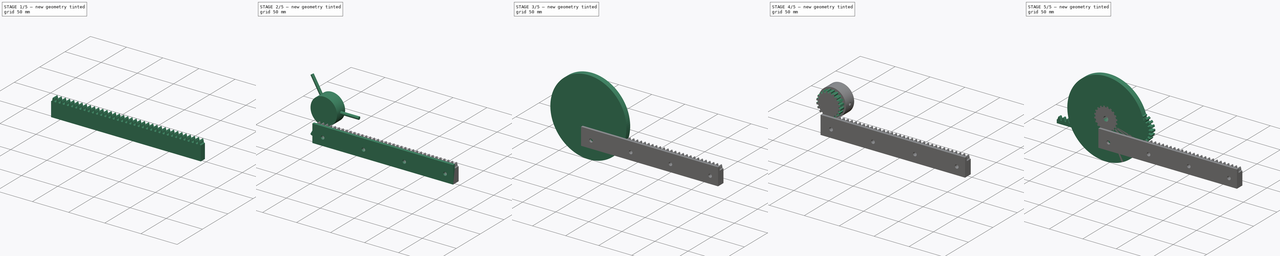
[diagram: build sequence overview — one tinted view per stage of 5, left to right]
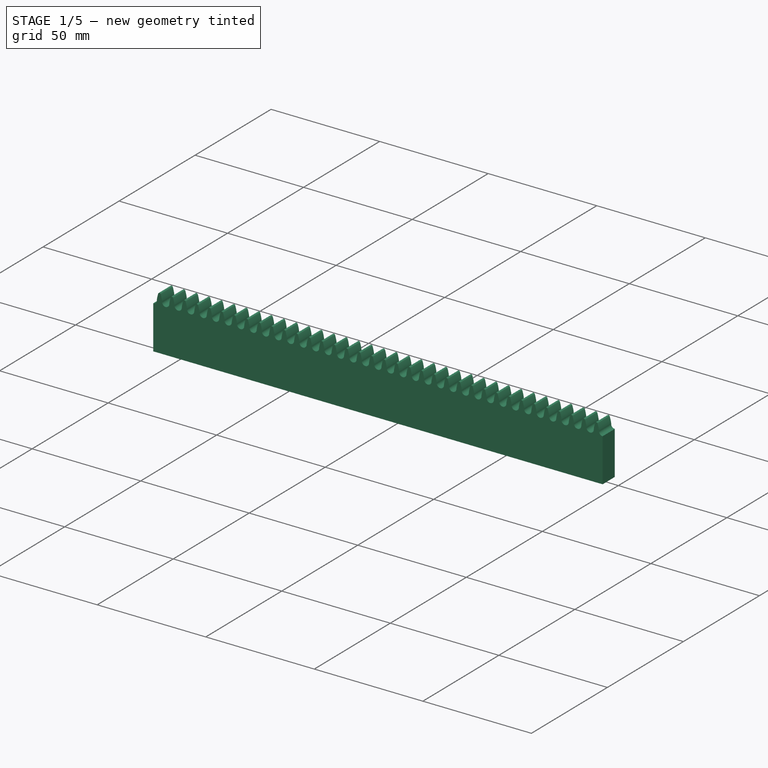
[diagram: stage 1 of 5 — iso view after this stage's code; geometry added in this stage tinted green]
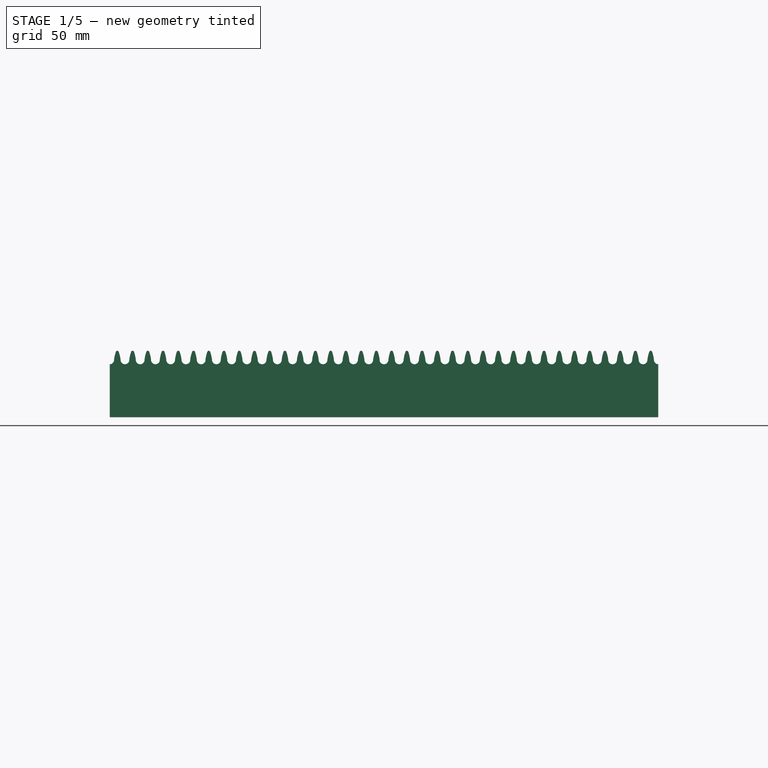
[diagram: stage 1 of 5 — front view after this stage's code; geometry added in this stage tinted green]
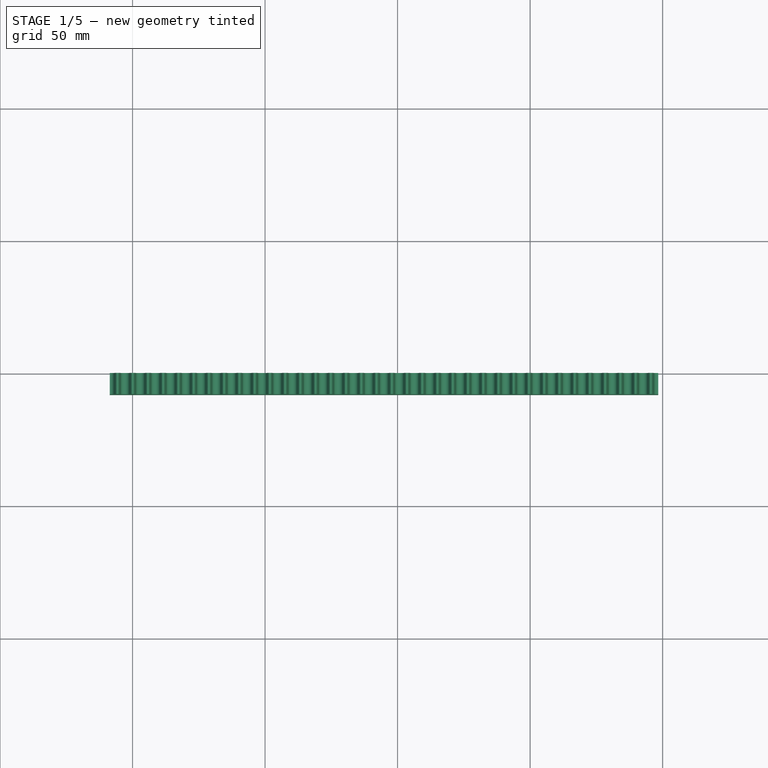
[diagram: stage 1 of 5 — top view after this stage's code; geometry added in this stage tinted green]
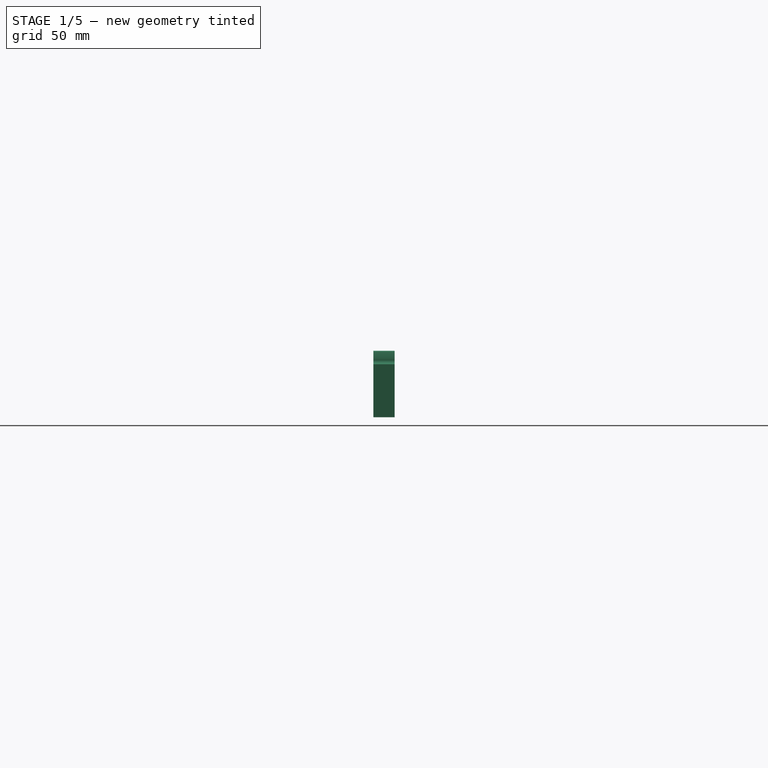
[diagram: stage 1 of 5 — right view after this stage's code; geometry added in this stage tinted green]
FCSTD DOCUMENT  (FreeCAD 0.20R29177 (Git))
Label: cnc-friendy-rack-and-pinion-for-humphrey2
License: All rights reserved
LicenseURL: http://en.wikipedia.org/wiki/All_rights_reserved
objects: Part::FeaturePython×50, Part::Mirroring×7, PartDesign::Body×6, Part::Cut×6, Part::Cylinder×6, Sketcher::SketchObject×5, PartDesign::FeatureBase×4, App::DocumentObjectGroup×3, Part::Offset×2, PartDesign::Pad×2, PartDesign::Fillet×2, Part::MultiFuse×2, Spreadsheet::Sheet×1, Part::Feature×1, Part::Box×1, PartDesign::ShapeBinder×1, Part::Loft×1, Part::MultiCommon×1, Part::Compound×1, Part::RuledSurface×1, +2 more types
note: 105 computed .brp shape members not serialized (recipe doc carries the construction recipe); baked Part::Feature solids carry a one-line shape summary decoded from their .brp

FEATURE [Spreadsheet::Sheet] Spreadsheet
  cells = A1=Main adjustements; A2=Number of pinion teeth; B2(pinion_tooth_count)=20; A3=Pinion tooth width; B3(pinion_tooth_width)=3.3; A4=Pinion tooth heigth; B4(pinion_tooth_heigth)=8; A5=Rack tooth spacing; B5(rack_tooth_spacing)=5.75; A6=Rack width; B6(rack_width)=20; A7=Rack thickness; B7(rack_thickness)=8; A8=Rack length; B8(rack_length)=205; A10=Advanced adjustments; A11=Motor shaft diameter; B11(pinion_motor_shaft_diameter)=7.2; A12=Motor shaft flat depth; B12(pinion_motor_shaft_flat_depth)=0.5; A13=Motor shaft flat corner dogbone diameter; B13(pinion_motor_shaft_flat_dogbone_diameter)=3.1; A14=Motorshaft hole dogbone angle; B14(pinion_dogbone_angle)=75; A15=Rack tooth fillet ratio; B15(rack_tooth_fillet_ratio)=0.1; A16=Pinion valley to rack tooth tip clearance; B16(pinion_side_clearance)=0.12; A17=Pinion to rack heigth clearance; B17(pinion_heigth_clearance)=0.5; A18=Pinion dust relief trim distance; B18(dust_relief)=0.5; A19=Pinion dust relief fillet ratio; B19(dust_relief_fillet_ratio)=0.1; A20=Pinion stock thickness; B20(pinion_stock_thick)=25; A21=Pinion ring diameter; B21(pinion_ring_diameter)=39; A22=Pinion set screw hole diameter; B22(pinion_set_screw_hole_diameter)=4.3; A23=Pinion set screw count; B23(pinion_set_screw_count)=3; A25=Inputs not to be changed:; A26=Master cycloid circumference; B26(master_cycloid_circumference)=100; A29=Deducted values (not to be changed):; A30=Pinion circumference; B30(pinion_circumference)==pinion_tooth_count * rack_tooth_spacing; A31=Pinion tooth gap size; B31(pinion_tooth_gap_size)==rack_tooth_spacing - pinion_tooth_width
FEATURE [Part::Feature] Part__Feature  label="Master-cycloid"
  shape: bbox 100 x 100 x 81.83 mm, 7 faces (baked)
FEATURE [Part::FeaturePython] Clone  label="Master-cycloid-scaled-and-moved"  # Draft clone (typed FeaturePython)
  AttacherType = Attacher::AttachEngine3D
  Fuse = false
  Objects = -> [Part__Feature]
  Placement = pos=(-2.875,0,0) rot=(0,0,1;0rad)
  Scale = (1.15,1.15,1.15)
  expr: .Placement.Base.x = Spreadsheet.rack_tooth_spacing / 2 * -1
  expr: .Scale.x = Spreadsheet.pinion_circumference / Spreadsheet.master_cycloid_circumference
  expr: .Scale.y = Spreadsheet.pinion_circumference / Spreadsheet.master_cycloid_circumference
  expr: .Scale.z = Spreadsheet.pinion_circumference / Spreadsheet.master_cycloid_circumference
FEATURE [Part::Offset] Offset
  Fill = false
  Intersection = false
  Join = 0
  Mode = 0
  SelfIntersection = false
  Source = -> Clone
  Value = 1.65
  expr: Value = Spreadsheet.pinion_tooth_width / 2
FEATURE [Part::Mirroring] Part__Mirroring  label="Offset (Mirror #1)"
  Base = (0,0,0)
  Normal = (1,0,0)
  Source = -> Offset
FEATURE [Sketcher::SketchObject] Sketch
  FullyConstrained = true
  MapMode = 5
  Placement = pos=(0,0,0) rot=(1,0,0;1.5708rad)
  Support = -> [XZ_Plane]
  expr: Constraints[10] = Spreadsheet.rack_tooth_spacing / -2
  expr: Constraints[11] = Spreadsheet.rack_width + Spreadsheet.pinion_tooth_width / 2
  expr: Constraints[8] = Spreadsheet.rack_tooth_spacing
  expr: Constraints[9] = Spreadsheet.rack_width + Spreadsheet.rack_tooth_spacing * 3
  sketch-geometry (4):
    g0: LineSegment StartX=-2.875 StartY=15.6 StartZ=0 EndX=2.875 EndY=15.6 EndZ=0
    g1: LineSegment StartX=2.875 StartY=15.6 StartZ=0 EndX=2.875 EndY=-21.65 EndZ=0
    g2: LineSegment StartX=2.875 StartY=-21.65 StartZ=0 EndX=-2.875 EndY=-21.65 EndZ=0
    g3: LineSegment StartX=-2.875 StartY=-21.65 StartZ=0 EndX=-2.875 EndY=15.6 EndZ=0
  constraints (12):
    c: Coincident(g0,g1)
    c: Coincident(g1,g2)
    c: Coincident(g2,g3)
    c: Coincident(g3,g0)
    c: Horizontal(g0)
    c: Horizontal(g2)
    c: Vertical(g1)
    c: Vertical(g3)
    c: DistanceX(g2,g2) = 5.75
    c: DistanceY(g1,g1) = 37.25
    c: DistanceX(g1,g-1) = -2.875
    c: DistanceY(g1,g-1) = 21.65
FEATURE [PartDesign::Pad] Pad
  AllowMultiFace = false
  Direction = (1,1,1)
  Length = 8
  Length2 = 100
  Placement = pos=(0,0,0) rot=(1,0,0;1.5708rad)
  Profile = -> Sketch
  Type = 0
  expr: Length = Spreadsheet.rack_thickness
FEATURE [PartDesign::Body] Body
  Group = -> [Sketch,Pad]
  Origin = -> Origin
  Tip = -> Pad
FEATURE [Part::Cut] Cut
  Base = -> Pad
  Tool = -> Offset
FEATURE [Part::Cut] Cut001
  Base = -> Cut
  Tool = -> Part__Mirroring
FEATURE [PartDesign::FeatureBase] BaseFeature
  BaseFeature = -> Cut001
FEATURE [PartDesign::Fillet] Fillet
  Base = -> BaseFeature [Edge21]
  BaseFeature = -> BaseFeature
  Radius = 0.575
  SupportTransform = false
  UseAllEdges = false
  expr: Radius = Spreadsheet.rack_tooth_spacing * Spreadsheet.rack_tooth_fillet_ratio
FEATURE [PartDesign::Body] Body001
  BaseFeature = -> Cut001
  Group = -> [BaseFeature,Fillet]
  Origin = -> Origin001
  Placement = pos=(0,0,-6.3662) rot=(0,0,1;0rad)
  Tip = -> Fillet
  expr: .Placement.Base.x = 0
FEATURE [Part::FeaturePython] Array  label="Rack"  # Draft array (typed FeaturePython)
  Angle = 360
  ArrayType = 0
  Axis = (0,0,1)
  Base = -> Fillet
  Center = (0,0,0)
  Fuse = true
  IntervalAxis = (0,0,0)
  IntervalX = (5.75,0,0)
  IntervalY = (0,1,0)
  IntervalZ = (0,0,1)
  NumberPolar = 1
  NumberX = 36
  NumberY = 1
  NumberZ = 1
  Placement = pos=(-5.75,0,-18.3028) rot=(0,0,1;0rad)
  expr: .IntervalX.x = Spreadsheet.rack_tooth_spacing
  expr: .Placement.Base.x = Spreadsheet.rack_tooth_spacing * -1
  expr: .Placement.Base.z = Spreadsheet.pinion_circumference / pi / -2
  expr: NumberX = Spreadsheet.rack_length / Spreadsheet.rack_tooth_spacing
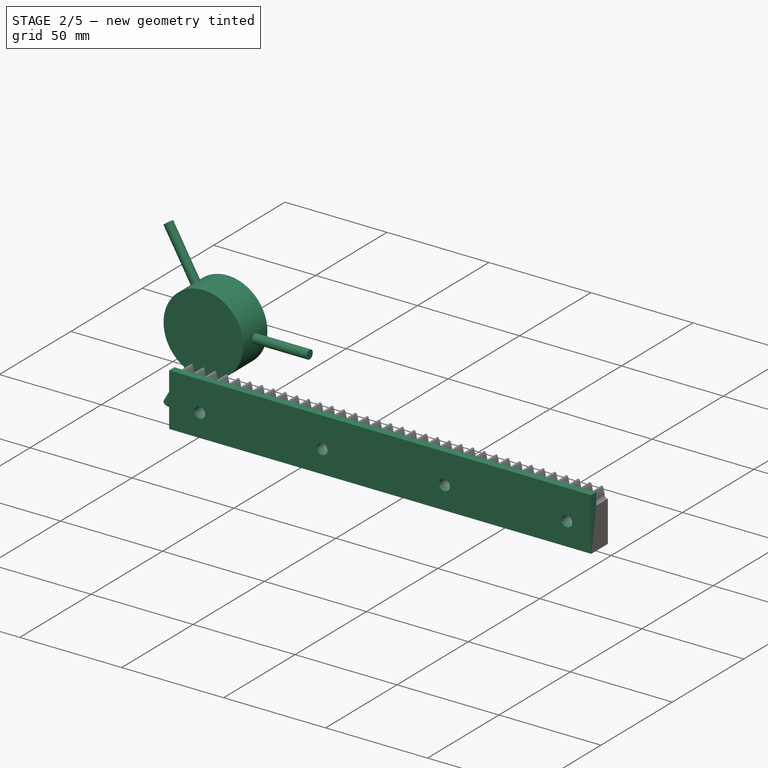
[diagram: stage 2 of 5 — iso view after this stage's code; geometry added in this stage tinted green]
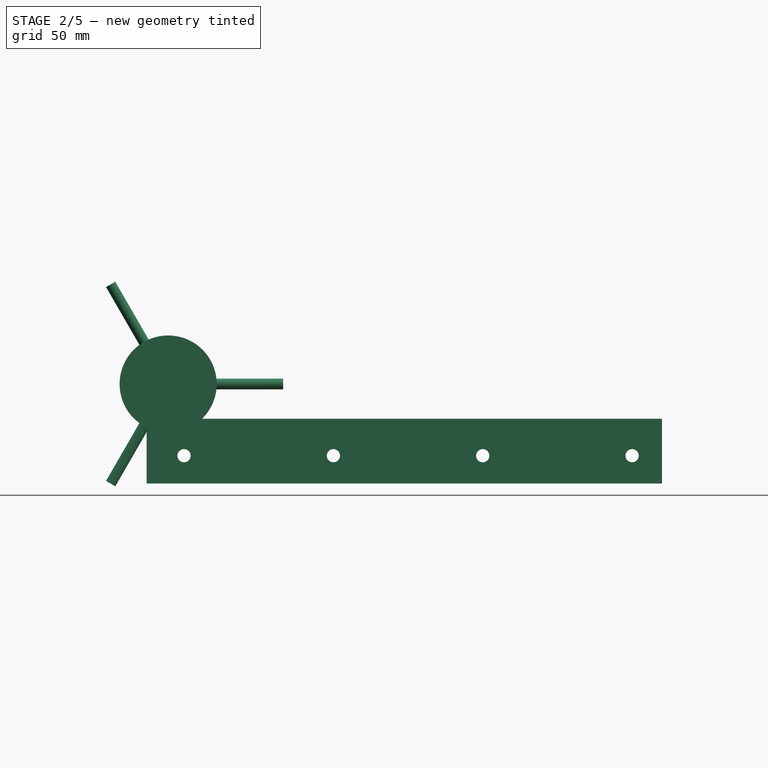
[diagram: stage 2 of 5 — front view after this stage's code; geometry added in this stage tinted green]
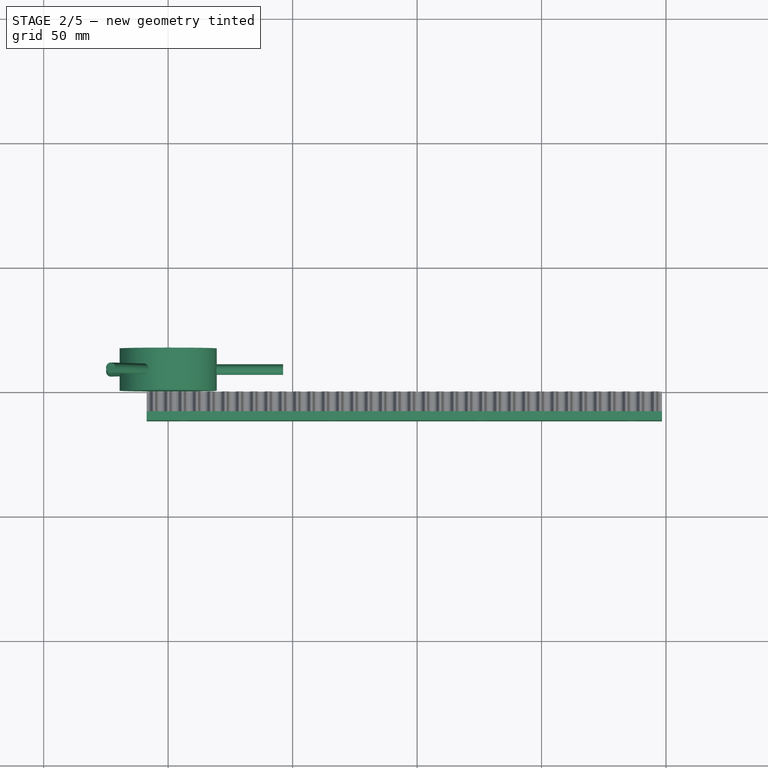
[diagram: stage 2 of 5 — top view after this stage's code; geometry added in this stage tinted green]
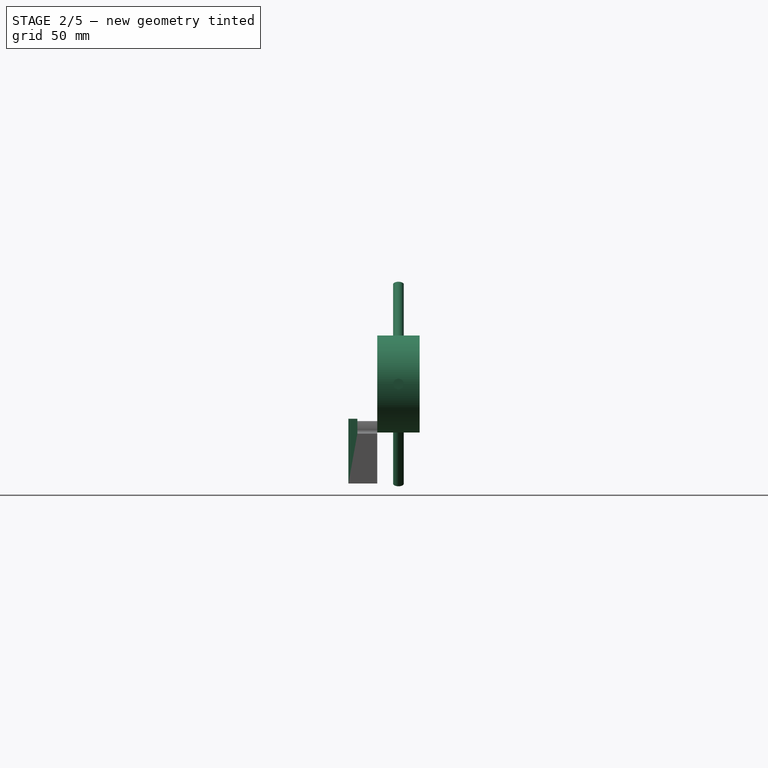
[diagram: stage 2 of 5 — right view after this stage's code; geometry added in this stage tinted green]
FEATURE [Part::Cylinder] Cylinder004  label="Cylinder"
  Angle = 360
  AttacherType = Attacher::AttachEngine3D
  FirstAngle = 0
  Height = 17
  Placement = pos=(0,0,0) rot=(-1,0,0;1.5708rad)
  Radius = 19.5
  SecondAngle = 0
  expr: Height = Spreadsheet.pinion_stock_thick - Spreadsheet.pinion_tooth_heigth
  expr: Radius = Spreadsheet.pinion_ring_diameter / 2
FEATURE [Part::Cylinder] Cylinder005  label="Cylinder001"
  Angle = 360
  AttacherType = Attacher::AttachEngine3D
  FirstAngle = 0
  Height = 46.2
  Placement = pos=(0,8.5,0) rot=(0,1,0;1.5708rad)
  Radius = 2.15
  SecondAngle = 0
  expr: .Placement.Base.y = (Spreadsheet.pinion_stock_thick - Spreadsheet.pinion_tooth_heigth) / 2
  expr: Height = Spreadsheet.pinion_motor_shaft_diameter + Spreadsheet.pinion_ring_diameter
  expr: Radius = Spreadsheet.pinion_set_screw_hole_diameter / 2
FEATURE [Part::FeaturePython] Array016  # Draft array (typed FeaturePython)
  Angle = 360
  ArrayType = 1
  Axis = (0,1,0)
  Base = -> Cylinder005
  Center = (0,0,0)
  Fuse = false
  IntervalAxis = (0,0,0)
  IntervalX = (1,0,0)
  IntervalY = (0,1,0)
  IntervalZ = (0,0,1)
  NumberPolar = 3
  NumberX = 1
  NumberY = 1
  NumberZ = 1
  expr: NumberPolar = Spreadsheet.pinion_set_screw_count
FEATURE [PartDesign::FeatureBase] BaseFeature004
  BaseFeature = -> Array
FEATURE [Sketcher::SketchObject] Sketch004
  AttachmentOffset = pos=(0,0,8) rot=(0,0,1;0rad)
  ExternalGeometry = -> [BaseFeature004]
  FullyConstrained = true
  MapMode = 5
  Placement = pos=(0,-8,-1.8e-15) rot=(1,0,0;1.5708rad)
  Support = -> [XZ_Plane008]
  expr: .AttachmentOffset.Base.z = Spreadsheet.pinion_tooth_heigth
  sketch-geometry (4):
    g0: LineSegment StartX=-2.875 StartY=-21.65 StartZ=0 EndX=204.125 EndY=-21.65 EndZ=0
    g1: LineSegment StartX=204.125 StartY=-21.65 StartZ=0 EndX=204.125 EndY=4.35 EndZ=0
    g2: LineSegment StartX=204.125 StartY=4.35 StartZ=0 EndX=-2.875 EndY=4.35 EndZ=0
    g3: LineSegment StartX=-2.875 StartY=4.35 StartZ=0 EndX=-2.875 EndY=-21.65 EndZ=0
  constraints (10):
    c: Coincident(g0,g1)
    c: Coincident(g1,g2)
    c: Coincident(g2,g3)
    c: Coincident(g3,g0)
    c: Horizontal(g2)
    c: Vertical(g1)
    c: Vertical(g3)
    c: Distance(g1) = 26
    c: Coincident(g0,g-5)
    c: Coincident(g-4,g0)
FEATURE [PartDesign::Pad] Pad001
  BaseFeature = -> BaseFeature004
  Direction = (1,1,1)
  Length = 3.6
  Length2 = 100
  Profile = -> Sketch004
  Refine = true
  Type = 0
  expr: Length = 11.6 - Spreadsheet.pinion_tooth_heigth
FEATURE [Sketcher::SketchObject] Sketch005
  FullyConstrained = false
  MapMode = 5
  Placement = pos=(0,0,0) rot=(1,0,0;1.5708rad)
  Support = -> [XZ_Plane008]
  expr: Constraints[1] = 15 - Spreadsheet.rack_tooth_spacing / 2
  sketch-geometry (1):
    g0: Circle CenterX=12.125 CenterY=-10.5 CenterZ=0 NormalX=0 NormalY=0 NormalZ=1 AngleXU=0 Radius=4.11992
  constraints (2):
    c: DistanceY(g-1,g0) = -10.5
    c: DistanceX(g-2,g0) = 12.125
FEATURE [PartDesign::Hole] Hole
  BaseFeature = -> Pad001
  CustomThreadClearance = 0
  Depth = 25
  DepthType = 1
  Diameter = 5.3
  DrillForDepth = false
  DrillPoint = 1
  DrillPointAngle = 118
  HoleCutCountersinkAngle = 90
  HoleCutCustomValues = false
  HoleCutDepth = 5.5
  HoleCutDiameter = 9.7
  HoleCutType = 1
  ModelThread = false
  Profile = -> Sketch005
  Reversed = true
  Tapered = false
  TaperedAngle = 90
  ThreadClass = 0
  ThreadDepth = 23.5
  ThreadDepthType = 0
  ThreadDirection = 0
  ThreadFit = 0
  ThreadSize = 0
  ThreadType = 0
  Threaded = false
  UseCustomThreadClearance = false
FEATURE [PartDesign::LinearPattern] LinearPattern
  BaseFeature = -> Hole
  Direction = -> Sketch005 [H_Axis]
  Length = 180
  Occurrences = 4
  Originals = -> [Hole]
  expr: Length = (Occurrences - 1) * 60
FEATURE [PartDesign::Body] Body008  label="Rack with web and material thickness"
  BaseFeature = -> Array
  Group = -> [BaseFeature004,Sketch004,Pad001,Sketch005,Hole,LinearPattern]
  Origin = -> Origin008
  Placement = pos=(-5.75,0,-18.3028) rot=(0,0,1;0rad)
  Tip = -> LinearPattern
  expr: .Placement.Base.x = Spreadsheet.rack_tooth_spacing * -1
  expr: .Placement.Base.z = Spreadsheet.pinion_circumference / pi / -2
FEATURE [Part::FeaturePython] Array017  label="Rack - position fixed"  # Draft array (typed FeaturePython)
  AlwaysSyncPlacement = false
  Angle = 360
  ArrayType = 0
  Axis = (0,0,1)
  Base = -> Body008
  Center = (0,0,0)
  Count = 1
  ExpandArray = false
  Fuse = false
  IntervalAxis = (0,0,0)
  IntervalX = (100,0,0)
  IntervalY = (0,100,0)
  IntervalZ = (0,0,100)
  NumberCircles = 3
  NumberPolar = 5
  NumberX = 1
  NumberY = 1
  NumberZ = 1
  PlacementList = 1 placements: [(-5.75,0,-18.3028)]
  RadialDistance = 50
  ScaleList = (1) [(1,1,1)]
  Symmetry = 1
  TangentialDistance = 25
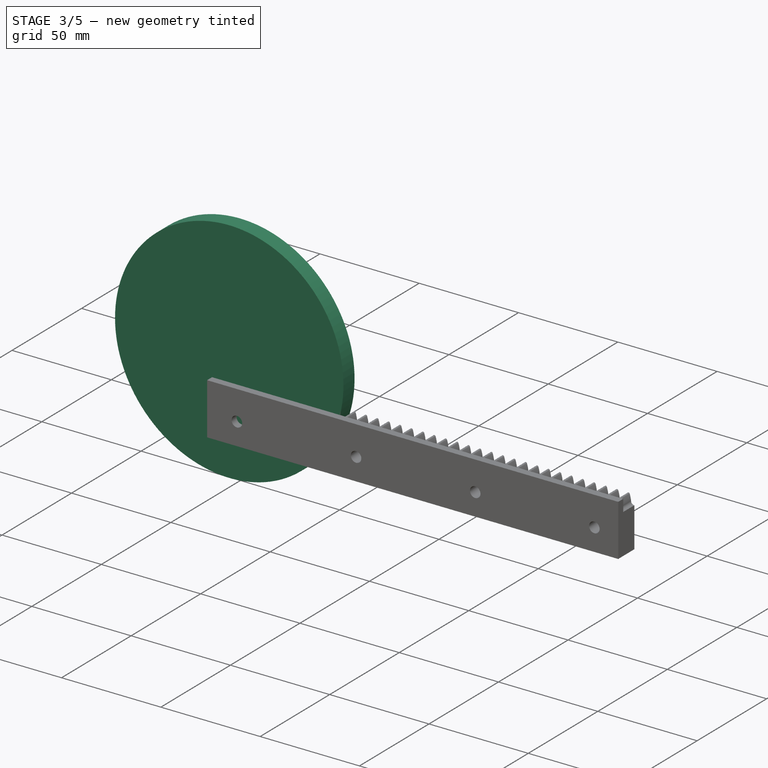
[diagram: stage 3 of 5 — iso view after this stage's code; geometry added in this stage tinted green]
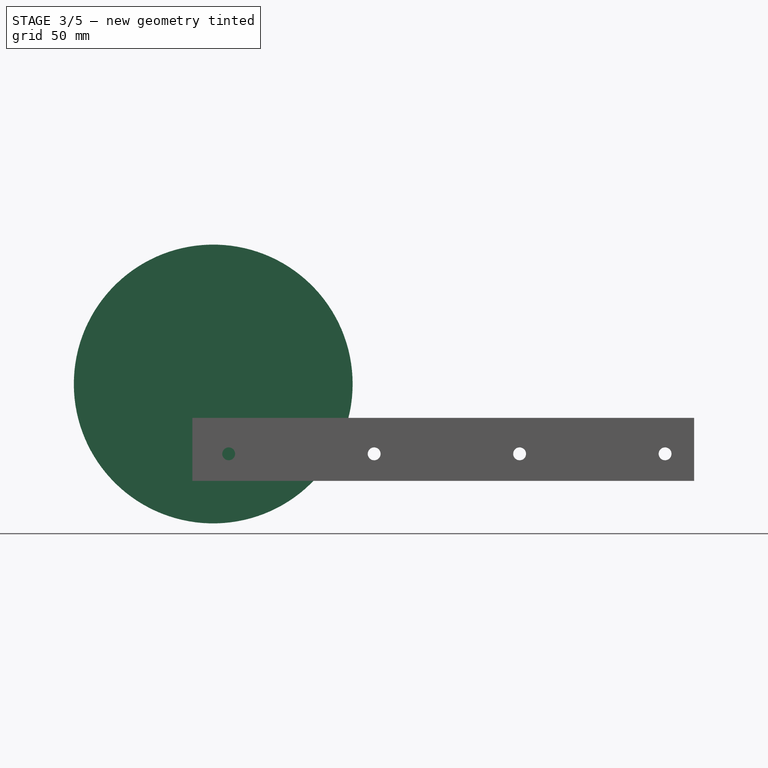
[diagram: stage 3 of 5 — front view after this stage's code; geometry added in this stage tinted green]
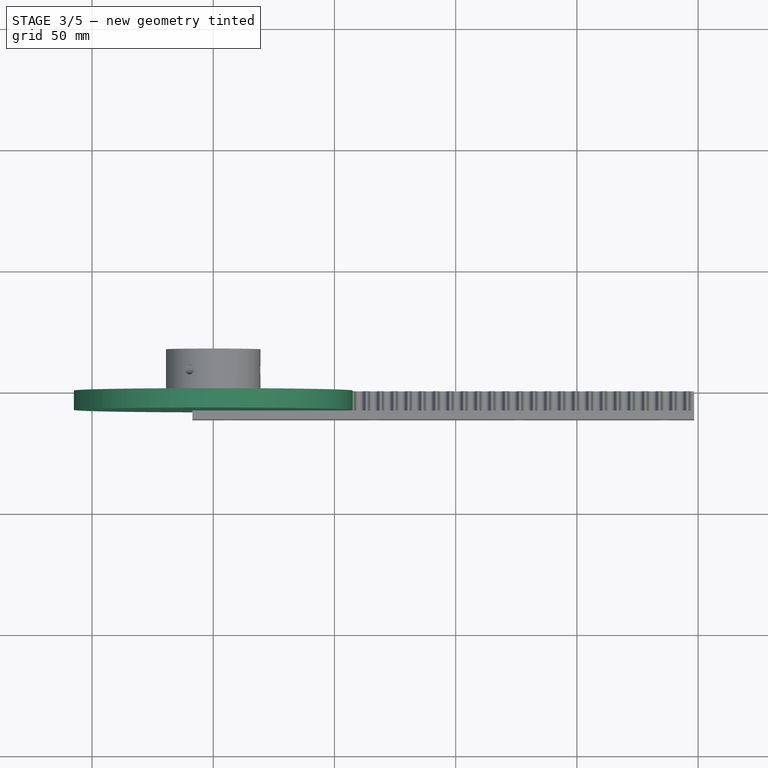
[diagram: stage 3 of 5 — top view after this stage's code; geometry added in this stage tinted green]
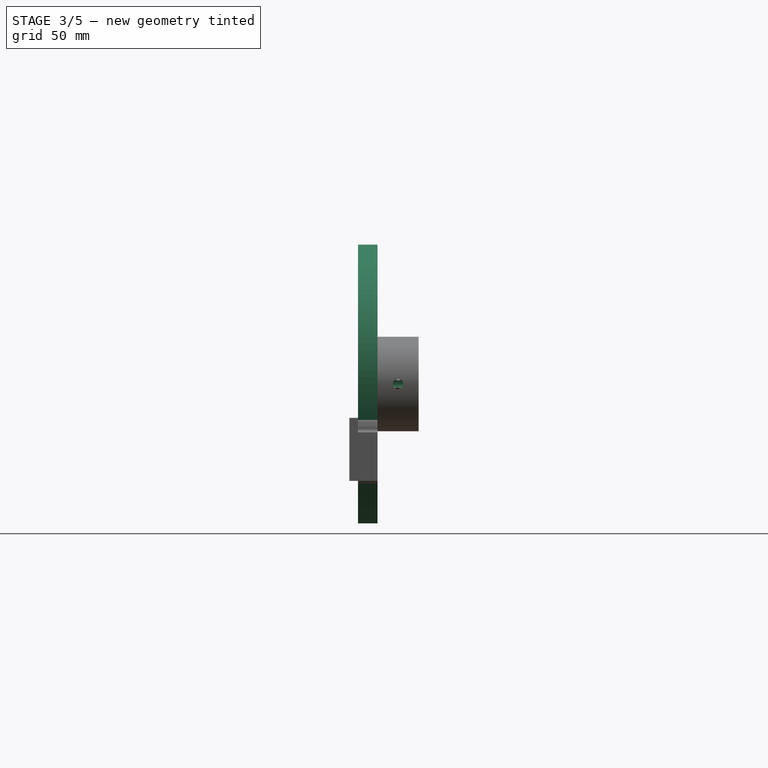
[diagram: stage 3 of 5 — right view after this stage's code; geometry added in this stage tinted green]
FEATURE [PartDesign::ShapeBinder] ShapeBinder
  Placement = pos=(0,0,-18.3028) rot=(0,0,1;0rad)
  Support = -> [Cut002]
  TraceSupport = false
FEATURE [Sketcher::SketchObject] Sketch001
  ExternalGeometry = -> [ShapeBinder]
  FullyConstrained = true
  MapMode = 5
  Placement = pos=(0,0,0) rot=(0.57735,0.57735,0.57735;2.0944rad)
  Support = -> [YZ_Plane005]
  expr: Constraints[3] = Spreadsheet.rack_tooth_spacing * Spreadsheet.rack_tooth_fillet_ratio
  sketch-geometry (1):
    g0: LineSegment StartX=-8 StartY=-15.4427 StartZ=0 EndX=3.6e-15 EndY=-15.4427 EndZ=0
  constraints (4):
    c: Horizontal(g0)
    c: DistanceX(g0,g-3) = 0
    c: DistanceX(g0,g-3) = 0
    c: DistanceY(g0,g-3) = 0.575
FEATURE [PartDesign::Body] Body005  label="Body for extrating tooth tip center line"
  Group = -> [Sketch001,ShapeBinder]
  Origin = -> Origin005
FEATURE [Part::FeaturePython] Array001  label="Center line"  # Draft array (typed FeaturePython)
  Angle = 360
  ArrayType = 0
  Axis = (0,0,1)
  Base = -> Sketch001
  Center = (0,0,0)
  Fuse = false
  IntervalAxis = (0,0,0)
  IntervalX = (1,0,0)
  IntervalY = (0,1,0)
  IntervalZ = (0,0,1)
  NumberPolar = 1
  NumberX = 1
  NumberY = 1
  NumberZ = 1
FEATURE [Part::FeaturePython] Array002  label="Rigth1-move"  # Draft array (typed FeaturePython)
  Angle = 360
  ArrayType = 0
  Axis = (0,0,1)
  Base = -> Sketch001
  Center = (0,0,0)
  Fuse = false
  IntervalAxis = (0,0,0)
  IntervalX = (1,0,0)
  IntervalY = (0,1,0)
  IntervalZ = (0,0,1)
  NumberPolar = 1
  NumberX = 1
  NumberY = 1
  NumberZ = 1
  Placement = pos=(2.55556,0,0) rot=(0,0,1;0rad)
  expr: .Placement.Base.x = Spreadsheet.pinion_circumference / (360 / 8)
FEATURE [Part::FeaturePython] Array003  label="Rigth1-rotate"  # Draft array (typed FeaturePython)
  Angle = 0
  ArrayType = 0
  Axis = (0,0,1)
  Base = -> Array002
  Center = (0,0,0)
  Fuse = false
  IntervalAxis = (0,0,0)
  IntervalX = (1,0,0)
  IntervalY = (0,1,0)
  IntervalZ = (0,0,1)
  NumberPolar = 1
  NumberX = 1
  NumberY = 1
  NumberZ = 1
  Placement = pos=(0,0,0) rot=(0,1,0;0.139626rad)
  expr: .Placement.Base.x = 0
FEATURE [Part::FeaturePython] Array004  label="Right2-move"  # Draft array (typed FeaturePython)
  Angle = 360
  ArrayType = 0
  Axis = (0,0,1)
  Base = -> Sketch001
  Center = (0,0,0)
  Fuse = false
  IntervalAxis = (0,0,0)
  IntervalX = (1,0,0)
  IntervalY = (0,1,0)
  IntervalZ = (0,0,1)
  NumberPolar = 1
  NumberX = 1
  NumberY = 1
  NumberZ = 1
  Placement = pos=(5.11111,0,0) rot=(0,0,1;0rad)
  expr: .Placement.Base.x = Spreadsheet.pinion_circumference / (360 / 16)
FEATURE [Part::FeaturePython] Array005  label="Right2-rotate"  # Draft array (typed FeaturePython)
  Angle = 0
  ArrayType = 0
  Axis = (0,0,1)
  Base = -> Array004
  Center = (0,0,0)
  Fuse = false
  IntervalAxis = (0,0,0)
  IntervalX = (1,0,0)
  IntervalY = (0,1,0)
  IntervalZ = (0,0,1)
  NumberPolar = 1
  NumberX = 1
  NumberY = 1
  NumberZ = 1
  Placement = pos=(0,0,0) rot=(0,1,0;0.279253rad)
FEATURE [Part::FeaturePython] Array006  label="Right3-move"  # Draft array (typed FeaturePython)
  Angle = 360
  ArrayType = 0
  Axis = (0,0,1)
  Base = -> Sketch001
  Center = (0,0,0)
  Fuse = false
  IntervalAxis = (0,0,0)
  IntervalX = (1,0,0)
  IntervalY = (0,1,0)
  IntervalZ = (0,0,1)
  NumberPolar = 1
  NumberX = 1
  NumberY = 1
  NumberZ = 1
  Placement = pos=(7.66667,0,0) rot=(0,0,1;0rad)
  expr: .Placement.Base.x = Spreadsheet.pinion_circumference / (360 / 24)
FEATURE [Part::FeaturePython] Array007  label="Right3-rotate"  # Draft array (typed FeaturePython)
  Angle = 360
  ArrayType = 0
  Axis = (0,0,1)
  Base = -> Array006
  Center = (0,0,0)
  Fuse = false
  IntervalAxis = (0,0,0)
  IntervalX = (1,0,0)
  IntervalY = (0,1,0)
  IntervalZ = (0,0,1)
  NumberPolar = 1
  NumberX = 1
  NumberY = 1
  NumberZ = 1
  Placement = pos=(0,0,0) rot=(0,1,0;0.418879rad)
FEATURE [Part::FeaturePython] Array008  label="Right4-move "  # Draft array (typed FeaturePython)
  Angle = 360
  ArrayType = 0
  Axis = (0,0,1)
  Base = -> Sketch001
  Center = (0,0,0)
  Fuse = false
  IntervalAxis = (0,0,0)
  IntervalX = (1,0,0)
  IntervalY = (0,1,0)
  IntervalZ = (0,0,1)
  NumberPolar = 1
  NumberX = 1
  NumberY = 1
  NumberZ = 1
  Placement = pos=(10.2222,0,0) rot=(0,0,1;0rad)
  expr: .Placement.Base.x = Spreadsheet.pinion_circumference / (360 / 32)
FEATURE [Part::FeaturePython] Array009  label="Right4-rotate"  # Draft array (typed FeaturePython)
  Angle = 360
  ArrayType = 0
  Axis = (0,0,1)
  Base = -> Array008
  Center = (0,0,0)
  Fuse = false
  IntervalAxis = (0,0,0)
  IntervalX = (1,0,0)
  IntervalY = (0,1,0)
  IntervalZ = (0,0,1)
  NumberPolar = 1
  NumberX = 1
  NumberY = 1
  NumberZ = 1
  Placement = pos=(0,0,0) rot=(0,1,0;0.558505rad)
FEATURE [Part::FeaturePython] Array010  label="Right5-move"  # Draft array (typed FeaturePython)
  Angle = 360
  ArrayType = 0
  Axis = (0,0,1)
  Base = -> Sketch001
  Center = (0,0,0)
  Fuse = false
  IntervalAxis = (0,0,0)
  IntervalX = (1,0,0)
  IntervalY = (0,1,0)
  IntervalZ = (0,0,1)
  NumberPolar = 1
  NumberX = 1
  NumberY = 1
  NumberZ = 1
  Placement = pos=(12.7778,0,0) rot=(0,0,1;0rad)
  expr: .Placement.Base.x = Spreadsheet.pinion_circumference / (360 / 40)
FEATURE [Part::FeaturePython] Array011  label="Right5-rotate"  # Draft array (typed FeaturePython)
  Angle = 360
  ArrayType = 0
  Axis = (0,0,1)
  Base = -> Array010
  Center = (0,0,0)
  Fuse = false
  IntervalAxis = (0,0,0)
  IntervalX = (1,0,0)
  IntervalY = (0,1,0)
  IntervalZ = (0,0,1)
  NumberPolar = 1
  NumberX = 1
  NumberY = 1
  NumberZ = 1
  Placement = pos=(0,0,0) rot=(0,1,0;0.698132rad)
FEATURE [Part::FeaturePython] Array012  label="Right6-move"  # Draft array (typed FeaturePython)
  Angle = 360
  ArrayType = 0
  Axis = (0,0,1)
  Base = -> Sketch001
  Center = (0,0,0)
  Fuse = false
  IntervalAxis = (0,0,0)
  IntervalX = (1,0,0)
  IntervalY = (0,1,0)
  IntervalZ = (0,0,1)
  NumberPolar = 1
  NumberX = 1
  NumberY = 1
  NumberZ = 1
  Placement = pos=(15.3333,0,0) rot=(0,1,0;0rad)
  expr: .Placement.Base.x = Spreadsheet.pinion_circumference / (360 / 48)
FEATURE [Part::FeaturePython] Array013  label="Right6-rotate"  # Draft array (typed FeaturePython)
  Angle = 360
  ArrayType = 0
  Axis = (0,0,1)
  Base = -> Array012
  Center = (0,0,0)
  Fuse = false
  IntervalAxis = (0,0,0)
  IntervalX = (1,0,0)
  IntervalY = (0,1,0)
  IntervalZ = (0,0,1)
  NumberPolar = 1
  NumberX = 1
  NumberY = 1
  NumberZ = 1
  Placement = pos=(0,0,0) rot=(0,1,0;0.837758rad)
FEATURE [Part::Mirroring] Part__Mirroring001  label="Rigth1-rotate (Mirror #2)"
  Base = (0,0,0)
  Normal = (1,0,0)
  Source = -> Array003
FEATURE [Part::Mirroring] Part__Mirroring002  label="Right2-rotate (Mirror #3)"
  Base = (0,0,0)
  Normal = (1,0,0)
  Source = -> Array005
FEATURE [Part::Mirroring] Part__Mirroring003  label="Right3-rotate (Mirror #4)"
  Base = (0,0,0)
  Normal = (1,0,0)
  Source = -> Array007
FEATURE [Part::Mirroring] Part__Mirroring004  label="Right4-rotate (Mirror #5)"
  Base = (0,0,0)
  Normal = (1,0,0)
  Source = -> Array009
FEATURE [Part::Mirroring] Part__Mirroring005  label="Right5-rotate (Mirror #6)"
  Base = (0,0,0)
  Normal = (1,0,0)
  Source = -> Array011
FEATURE [Part::Mirroring] Part__Mirroring006  label="Right6-rotate (Mirror #7)"
  Base = (0,0,0)
  Normal = (1,0,0)
  Source = -> Array013
FEATURE [Part::FeaturePython] Connect  # WARN: FeaturePython — macro-defined, semantics opaque (R4)
  Objects = -> [Array003]
  Tolerance = 0
FEATURE [Part::FeaturePython] Connect001  # WARN: FeaturePython — macro-defined, semantics opaque (R4)
  Objects = -> [Array005]
  Tolerance = 0
FEATURE [Part::FeaturePython] Connect002  # WARN: FeaturePython — macro-defined, semantics opaque (R4)
  Objects = -> [Array007]
  Tolerance = 0
FEATURE [Part::FeaturePython] Connect003  # WARN: FeaturePython — macro-defined, semantics opaque (R4)
  Objects = -> [Array009]
  Tolerance = 0
FEATURE [Part::FeaturePython] Connect004  # WARN: FeaturePython — macro-defined, semantics opaque (R4)
  Objects = -> [Array011]
  Tolerance = 0
FEATURE [Part::FeaturePython] Connect005  # WARN: FeaturePython — macro-defined, semantics opaque (R4)
  Objects = -> [Array013]
  Tolerance = 0
FEATURE [Part::FeaturePython] Connect006  # WARN: FeaturePython — macro-defined, semantics opaque (R4)
  Objects = -> [Part__Mirroring001]
  Tolerance = 0
FEATURE [Part::FeaturePython] Connect007  # WARN: FeaturePython — macro-defined, semantics opaque (R4)
  Objects = -> [Part__Mirroring002]
  Tolerance = 0
FEATURE [Part::FeaturePython] Connect008  # WARN: FeaturePython — macro-defined, semantics opaque (R4)
  Objects = -> [Part__Mirroring003]
  Tolerance = 0
FEATURE [Part::FeaturePython] Connect009  # WARN: FeaturePython — macro-defined, semantics opaque (R4)
  Objects = -> [Part__Mirroring004]
  Tolerance = 0
FEATURE [Part::FeaturePython] Connect010  # WARN: FeaturePython — macro-defined, semantics opaque (R4)
  Objects = -> [Part__Mirroring005]
  Tolerance = 0
FEATURE [Part::FeaturePython] Connect011  # WARN: FeaturePython — macro-defined, semantics opaque (R4)
  Objects = -> [Part__Mirroring006]
  Tolerance = 0
FEATURE [Part::Loft] Loft
  Closed = false
  MaxDegree = 2
  Ruled = false
  Sections = -> [Connect011,Connect010,Connect009,Connect008,Connect007,Connect006,Array001,Connect,Connect001,Connect002,Connect003,Connect004,Connect005]
  Solid = false
FEATURE [Part::Offset] Offset001  label="Inner pinion profile before trim"
  Fill = false
  Intersection = false
  Join = 0
  Mode = 0
  SelfIntersection = false
  Source = -> Loft
  Value = -0.695
  expr: Value = (Spreadsheet.rack_tooth_spacing * Spreadsheet.rack_tooth_fillet_ratio + Spreadsheet.pinion_side_clearance) * -1
FEATURE [Part::Cylinder] Cylinder  label="ToothCylinder"
  Angle = 360
  AttacherType = Attacher::AttachEngine3D
  FirstAngle = 0
  Height = 8
  Placement = pos=(0,0,-18.3028) rot=(1,0,0;1.5708rad)
  Radius = 1.65
  SecondAngle = 0
  expr: .Placement.Base.x = 0
  expr: .Placement.Base.z = Spreadsheet.pinion_circumference / pi / -2
  expr: Height = Spreadsheet.pinion_tooth_heigth
  expr: Radius = Spreadsheet.pinion_tooth_width / 2
FEATURE [Part::Cylinder] Cylinder001  label="TrimCylinder"
  Angle = 360
  AttacherType = Attacher::AttachEngine3D
  FirstAngle = 0
  Height = 8
  Placement = pos=(0,0,0) rot=(1,0,0;1.5708rad)
  Radius = 19.4528
  SecondAngle = 0
  expr: Height = Spreadsheet.pinion_tooth_heigth
  expr: Radius = (Spreadsheet.pinion_circumference / pi + Spreadsheet.pinion_tooth_width) / 2 - Spreadsheet.dust_relief
FEATURE [Part::MultiCommon] Common  label="Tooth before fillet"
  Shapes = -> [Cylinder,Cylinder001]
FEATURE [PartDesign::FeatureBase] BaseFeature002
  BaseFeature = -> Common
FEATURE [Part::FeaturePython] Slice  # WARN: FeaturePython — macro-defined, semantics opaque (R4)
  Base = -> Offset001
  Mode = 1
  Tolerance = 0
  Tools = -> [Compound]
FEATURE [Part::FeaturePython] Slice_child0  label="Slice.0"  # WARN: FeaturePython — macro-defined, semantics opaque (R4)
  Base = -> Slice
  FilterType = 1
  Invert = false
  OverrideMaxVal = 0
  WindowFrom = 80
  WindowTo = 100
  items = 0
FEATURE [Part::FeaturePython] Slice_child1  label="Slice.1"  # WARN: FeaturePython — macro-defined, semantics opaque (R4)
  Base = -> Slice
  FilterType = 1
  Invert = false
  OverrideMaxVal = 0
  WindowFrom = 80
  WindowTo = 100
  items = 1
FEATURE [Part::FeaturePython] Slice_child2  label="Slice.2"  # WARN: FeaturePython — macro-defined, semantics opaque (R4)
  Base = -> Slice
  FilterType = 1
  Invert = false
  OverrideMaxVal = 0
  WindowFrom = 80
  WindowTo = 100
  items = 2
FEATURE [Part::FeaturePython] Slice_child3  label="Slice.3"  # WARN: FeaturePython — macro-defined, semantics opaque (R4)
  Base = -> Slice
  FilterType = 1
  Invert = false
  OverrideMaxVal = 0
  WindowFrom = 80
  WindowTo = 100
  items = 3
FEATURE [Part::FeaturePython] Slice_child4  label="Slice.4"  # WARN: FeaturePython — macro-defined, semantics opaque (R4)
  Base = -> Slice
  FilterType = 1
  Invert = false
  OverrideMaxVal = 0
  WindowFrom = 80
  WindowTo = 100
  items = 4
FEATURE [App::DocumentObjectGroup] GrExplode_Slice  label="Exploded Slice for inner skin"
  Group = -> [Slice_child0,Slice_child1,Slice_child2,Slice_child3,Slice_child4]
FEATURE [Part::FeaturePython] Clone003  label="Skin for line1"  # Draft clone (typed FeaturePython)
  AttacherType = Attacher::AttachEngine3D
  Fuse = false
  Objects = -> [Slice_child2]
  Scale = (1,1,1)
FEATURE [Part::FeaturePython] Clone004  label="Skin for line2"  # Draft clone (typed FeaturePython)
  AttacherType = Attacher::AttachEngine3D
  Fuse = false
  Objects = -> [Clone003]
  Placement = pos=(0,0,0) rot=(0,1,0;0.314159rad)
  Scale = (1,1,1)
  expr: .Placement.Rotation.Angle = 360 / Spreadsheet.pinion_tooth_count
FEATURE [Part::RuledSurface] Ruled_Surface
  Curve1 = -> Clone004 [Edge2]
  Curve2 = -> Slice_child2 [Edge4]
  Orientation = 0
FEATURE [Part::FeaturePython] Connect012  label="Inner profile and connection"  # WARN: FeaturePython — macro-defined, semantics opaque (R4)
  Objects = -> [Clone003,Ruled_Surface]
  Tolerance = 0
FEATURE [Part::FeaturePython] Array014  # Draft array (typed FeaturePython)
  Angle = 360
  ArrayType = 1
  Axis = (0,1,0)
  Base = -> Connect012
  Center = (0,0,0)
  Fuse = false
  IntervalAxis = (0,0,0)
  IntervalX = (1,0,0)
  IntervalY = (0,1,0)
  IntervalZ = (0,0,1)
  NumberPolar = 20
  NumberX = 1
  NumberY = 1
  NumberZ = 1
  expr: NumberPolar = Spreadsheet.pinion_tooth_count
FEATURE [Part::FeaturePython] Connect013  label="Connected inner skins"  # WARN: FeaturePython — macro-defined, semantics opaque (R4)
  Objects = -> [Array014]
  Tolerance = 0
FEATURE [Part::Cylinder] Cylinder002  label="Cylinder for trim to closed solid"
  Angle = 360
  AttacherType = Attacher::AttachEngine3D
  FirstAngle = 0
  Height = 8
  Placement = pos=(0,0,0) rot=(1,0,0;1.5708rad)
  Radius = 57.5
  SecondAngle = 0
  expr: Height = Spreadsheet.pinion_tooth_heigth
  expr: Radius = Spreadsheet.pinion_circumference / 2
FEATURE [Part::Cylinder] Cylinder003  label="Cylinder for motor shaft hole"
  Angle = 360
  AttacherType = Attacher::AttachEngine3D
  FirstAngle = 0
  Height = 25
  Placement = pos=(0,17,0) rot=(1,0,0;1.5708rad)
  Radius = 3.6
  SecondAngle = 0
  expr: .Placement.Base.y = Spreadsheet.pinion_stock_thick - Spreadsheet.pinion_tooth_heigth
  expr: Height = Spreadsheet.pinion_stock_thick
  expr: Radius = Spreadsheet.pinion_motor_shaft_diameter / 2
FEATURE [Part::Cut] Cut005  label="Pinion back ring"
  Base = -> Cylinder004
  Tool = -> Cylinder003
FEATURE [Part::Cut] Cut006  label="Pinion back ring with set scew holes"
  Base = -> Cut005
  Tool = -> Array016
FEATURE [Sketcher::SketchObject] Sketch003
  FullyConstrained = false
  Placement = pos=(0,0,0) rot=(1,0,0;1.5708rad)
  sketch-geometry (2):
    g0: Circle CenterX=2.6842 CenterY=-18.0679 CenterZ=0 NormalX=0 NormalY=0 NormalZ=1 AngleXU=0 Radius=1
    g1: Circle CenterX=-0.125337 CenterY=-21.0928 CenterZ=0 NormalX=0 NormalY=0 NormalZ=1 AngleXU=0 Radius=1
  constraints (2):
    c: Diameter(g1) = 2
    c: Diameter(g0) = 2
FEATURE [PartDesign::FeatureBase] BaseFeature003
  BaseFeature = -> Cut006
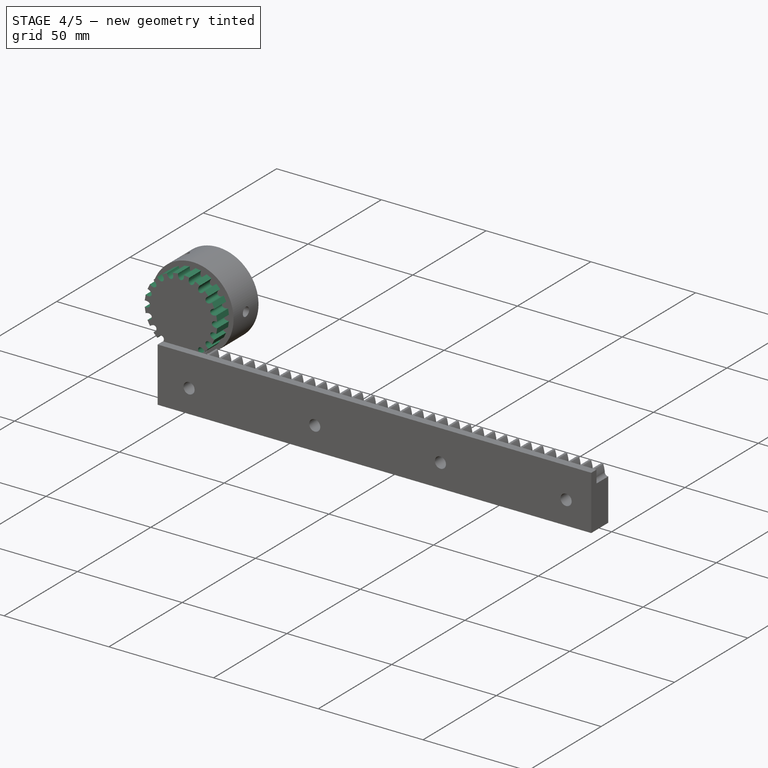
[diagram: stage 4 of 5 — iso view after this stage's code; geometry added in this stage tinted green]
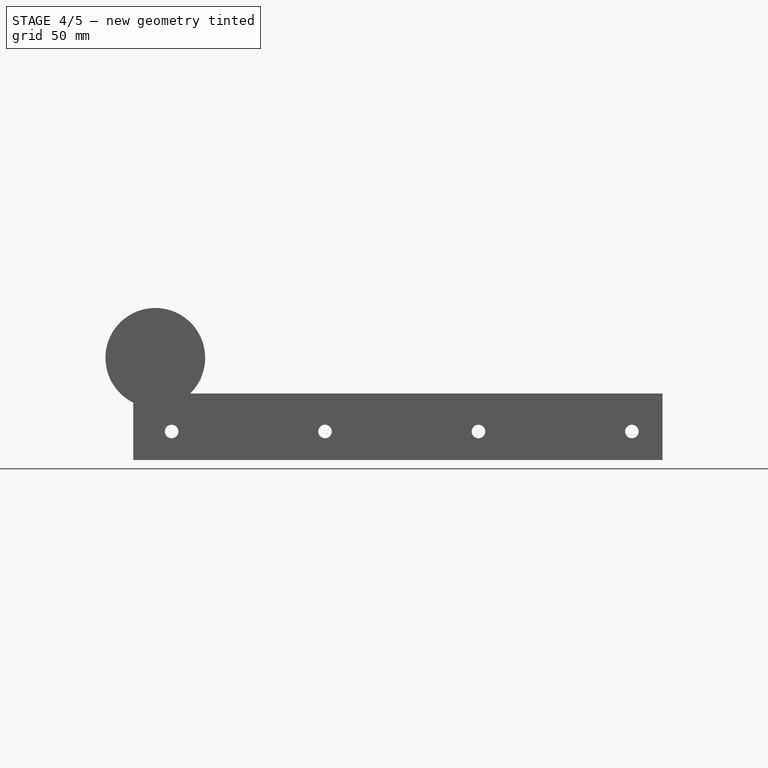
[diagram: stage 4 of 5 — front view after this stage's code; geometry added in this stage tinted green]
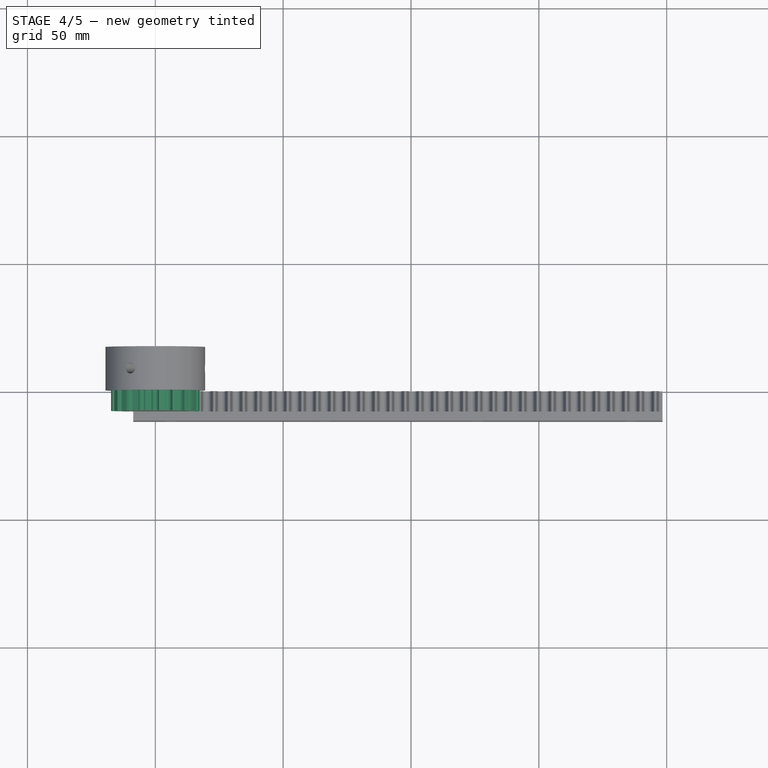
[diagram: stage 4 of 5 — top view after this stage's code; geometry added in this stage tinted green]
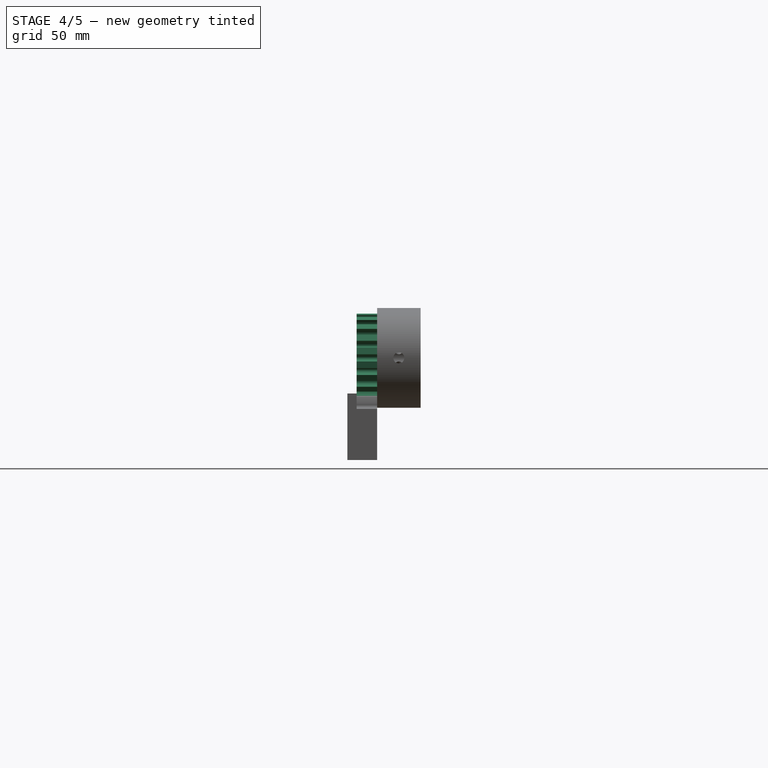
[diagram: stage 4 of 5 — right view after this stage's code; geometry added in this stage tinted green]
FEATURE [Part::Box] Box  label="Cube"
  AttacherType = Attacher::AttachEngine3D
  Height = 250
  Length = 11.5
  Placement = pos=(0,-8,-135) rot=(0,0,1;0rad)
  Width = 8
  expr: .Placement.Base.y = Spreadsheet.rack_thickness * -1
  expr: .Placement.Base.z = (Spreadsheet.rack_width + Spreadsheet.pinion_circumference) * -1
  expr: Height = Spreadsheet.rack_width + Spreadsheet.pinion_circumference * 2
  expr: Length = Spreadsheet.rack_tooth_spacing * 2
  expr: Width = Spreadsheet.rack_thickness
FEATURE [Part::Cut] Cut002  label="Halftooth for sampling"
  Base = -> Fillet
  Placement = pos=(0,0,-18.3028) rot=(0,0,1;0rad)
  Tool = -> Box
  expr: .Placement.Base.z = Spreadsheet.pinion_circumference / pi / -2
FEATURE [PartDesign::Fillet] Fillet002
  Base = -> BaseFeature002 [Edge6,Edge3]
  BaseFeature = -> BaseFeature002
  Radius = 0.33
  SupportTransform = false
  UseAllEdges = false
  expr: Radius = Spreadsheet.pinion_tooth_width * Spreadsheet.dust_relief_fillet_ratio
FEATURE [PartDesign::Body] Body006  label="Pinion tooth with dust relief"
  BaseFeature = -> Common
  Group = -> [BaseFeature002,Fillet002]
  Origin = -> Origin006
  Tip = -> Fillet002
FEATURE [Part::FeaturePython] Clone001  label="Left trim pinion"  # Draft clone (typed FeaturePython)
  AttacherType = Attacher::AttachEngine3D
  Fuse = false
  Objects = -> [Fillet002]
  Placement = pos=(0,0,0) rot=(0,1,0;0.15708rad)
  Scale = (1,1,1)
  expr: .Placement.Rotation.Angle = 360 / Spreadsheet.pinion_tooth_count / 2
FEATURE [Part::FeaturePython] Clone002  label="Rigth trim pinion"  # Draft clone (typed FeaturePython)
  AttacherType = Attacher::AttachEngine3D
  Fuse = false
  Objects = -> [Body006]
  Placement = pos=(0,0,0) rot=(0,-1,0;0.15708rad)
  Scale = (1,1,1)
  expr: .Placement.Rotation.Angle = 360 / Spreadsheet.pinion_tooth_count / 2
FEATURE [Part::Compound] Compound
  Links = -> [Clone001,Clone002]
FEATURE [Part::FeaturePython] Slice001  # WARN: FeaturePython — macro-defined, semantics opaque (R4)
  Base = -> Cylinder002
  Mode = 1
  Tolerance = 0
  Tools = -> [Connect013]
FEATURE [Part::FeaturePython] Slice001_child1  label="Slice001.1"  # WARN: FeaturePython — macro-defined, semantics opaque (R4)
  Base = -> Slice001
  FilterType = 1
  Invert = false
  OverrideMaxVal = 0
  WindowFrom = 80
  WindowTo = 100
  items = 1
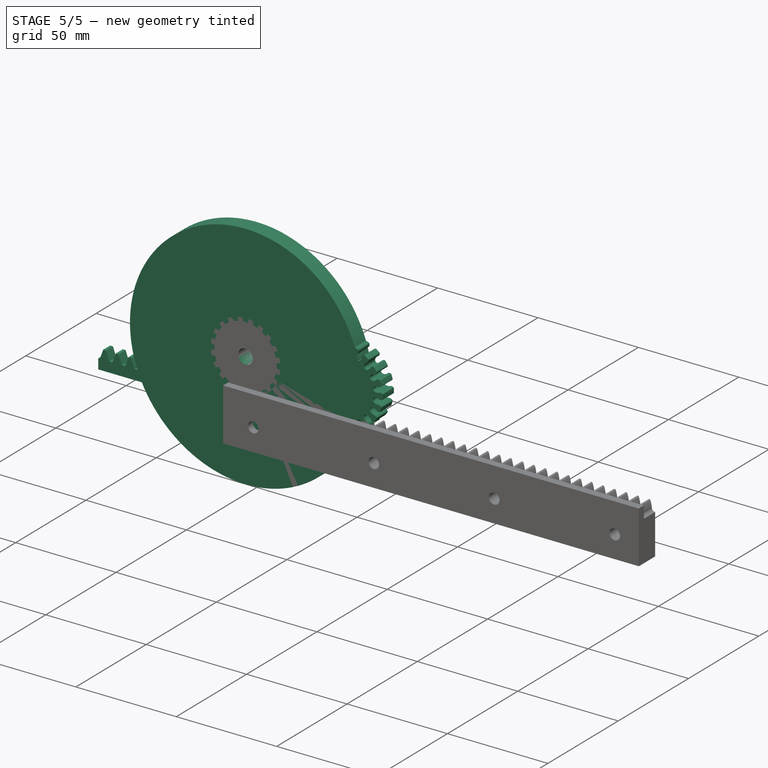
[diagram: stage 5 of 5 — iso view after this stage's code; geometry added in this stage tinted green]
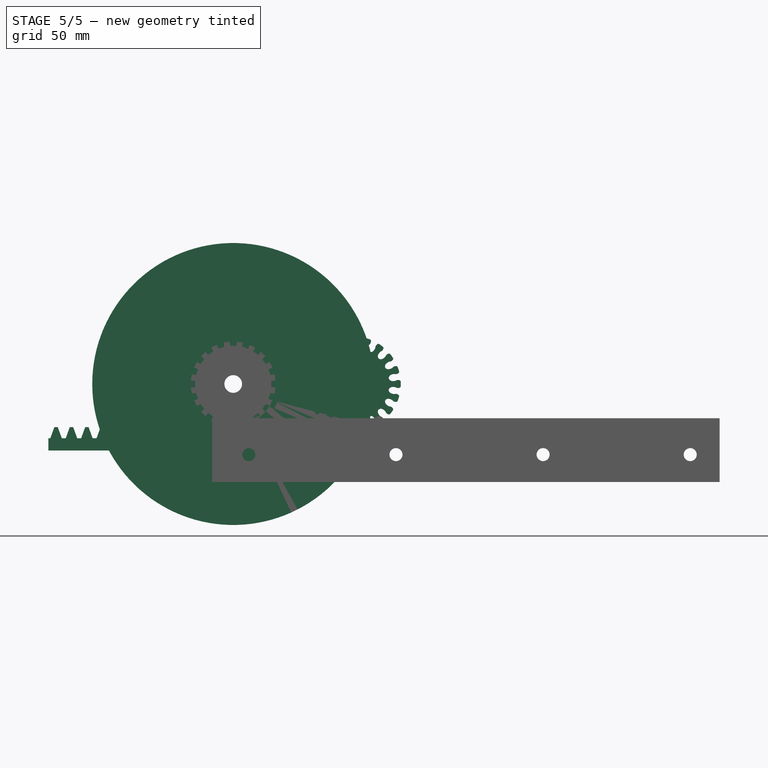
[diagram: stage 5 of 5 — front view after this stage's code; geometry added in this stage tinted green]
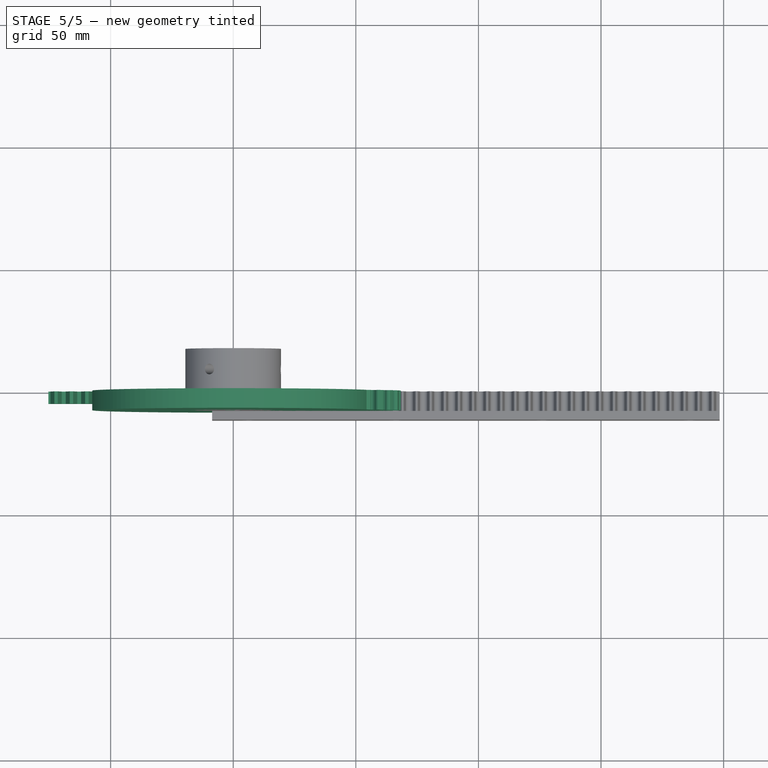
[diagram: stage 5 of 5 — top view after this stage's code; geometry added in this stage tinted green]
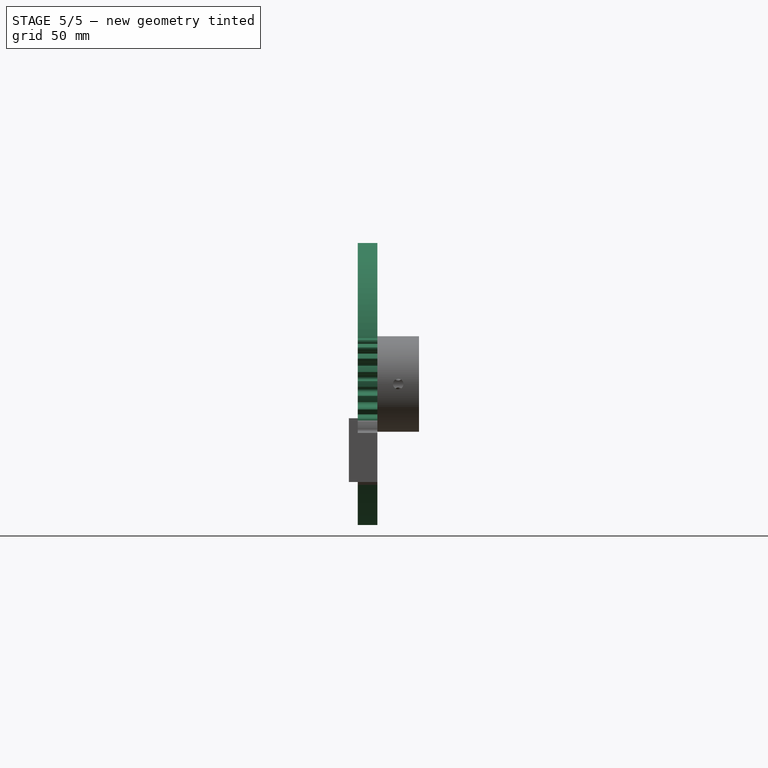
[diagram: stage 5 of 5 — right view after this stage's code; geometry added in this stage tinted green]
FEATURE [Part::FeaturePython] Slice001_child0  label="Slice001.0"  # WARN: FeaturePython — macro-defined, semantics opaque (R4)
  Base = -> Slice001
  FilterType = 1
  Invert = false
  OverrideMaxVal = 0
  WindowFrom = 80
  WindowTo = 100
  items = 0
FEATURE [App::DocumentObjectGroup] GrExplode_Slice001  label="Exploded Slice for closing all inner skins"
  Group = -> [Slice001_child0,Slice001_child1]
FEATURE [Part::FeaturePython] Array015  label="Array of pinion teeth"  # Draft array (typed FeaturePython)
  Angle = 360
  ArrayType = 1
  Axis = (0,1,0)
  Base = -> Fillet002
  Center = (0,0,0)
  Fuse = false
  IntervalAxis = (0,0,0)
  IntervalX = (1,0,0)
  IntervalY = (0,1,0)
  IntervalZ = (0,0,1)
  NumberPolar = 20
  NumberX = 1
  NumberY = 1
  NumberZ = 1
  Placement = pos=(0,0,0) rot=(0,1,0;0.15708rad)
  expr: .Placement.Rotation.Angle = 180 / Spreadsheet.pinion_tooth_count
  expr: NumberPolar = Spreadsheet.pinion_tooth_count
FEATURE [Part::FeaturePython] Clone005  label="Closed inner skins"  # Draft clone (typed FeaturePython)
  AttacherType = Attacher::AttachEngine3D
  Fuse = false
  Objects = -> [Slice001_child1]
  Scale = (1,1,1)
FEATURE [Part::MultiFuse] Fusion  label="Fusion of pinion teeth and inner skins"
  Refine = true
  Shapes = -> [Array015,Clone005]
FEATURE [Part::Cut] Cut004  label="Pinion with motor shaft cut"
  Base = -> Fusion
  Tool = -> Cylinder003
FEATURE [App::DocumentObjectGroup] Group  label="Leftover building blocks"
  Group = -> [GrExplode_Slice001,GrExplode_Slice,Body006,Common,Body005,Cut002,Cut001,Body,Part__Feature,Body001,Cut006]
FEATURE [Part::FeaturePython] Clone008  label="Pinion - position check"  # Draft clone (typed FeaturePython)
  AttacherType = Attacher::AttachEngine3D
  Fuse = false
  Objects = -> [Cut004]
  Placement = pos=(48.875,0,0) rot=(0,1,0;0.15708rad)
  Scale = (1,1,1)
  expr: .Placement.Base.x = (round(Spreadsheet.pinion_tooth_count / 2) - 1.5) * Spreadsheet.pinion_circumference / Spreadsheet.pinion_tooth_count
  expr: .Placement.Rotation.Angle = 180 / Spreadsheet.pinion_tooth_count
FEATURE [Part::FeaturePython] involutegear  # WARN: FeaturePython — macro-defined, semantics opaque (R4)
  AttacherType = Attacher::AttachEngine3D
  Placement = pos=(0,0,0) rot=(1,0,0;1.5708rad)
  backlash = 0
  beta = 0
  clearance = 0.35
  da = 42.8
  df = 34.6
  double_helix = false
  dw = 40
  head = -0.3
  height = 5
  module = 2
  numpoints = 6
  pressure_angle = 20
  properties_from_tool = false
  reversed_backlash = false
  shift = 0
  simple = false
  teeth = 20
  transverse_pitch = 6.28319
  undercut = false
  version = 0.0.3
FEATURE [Part::FeaturePython] involuterack  # WARN: FeaturePython — macro-defined, semantics opaque (R4)
  AttacherType = Attacher::AttachEngine3D
  Placement = pos=(15.708,0,-20) rot=(0.57735,-0.57735,0.57735;2.0944rad)
  add_endings = true
  beta = 0
  clearance = 0.05
  double_helix = false
  head = 0.2
  height = 5
  module = 2
  pressure_angle = 20
  properties_from_tool = false
  simplified = false
  teeth = 15
  thickness = 5
  transverse_pitch = 6.28319
  version = 0.0.3
  expr: .Placement.Base.x = involutegear.transverse_pitch * 2.5
FEATURE [PartDesign::Body] Body007  label="Pinion ring for chamfering"
  BaseFeature = -> Cut006
  Group = -> [BaseFeature003]
  Origin = -> Origin007
  Tip = -> BaseFeature003
FEATURE [Part::MultiFuse] Fusion001  label="Pinion"
  Refine = true
  Shapes = -> [Cut004,Body007]
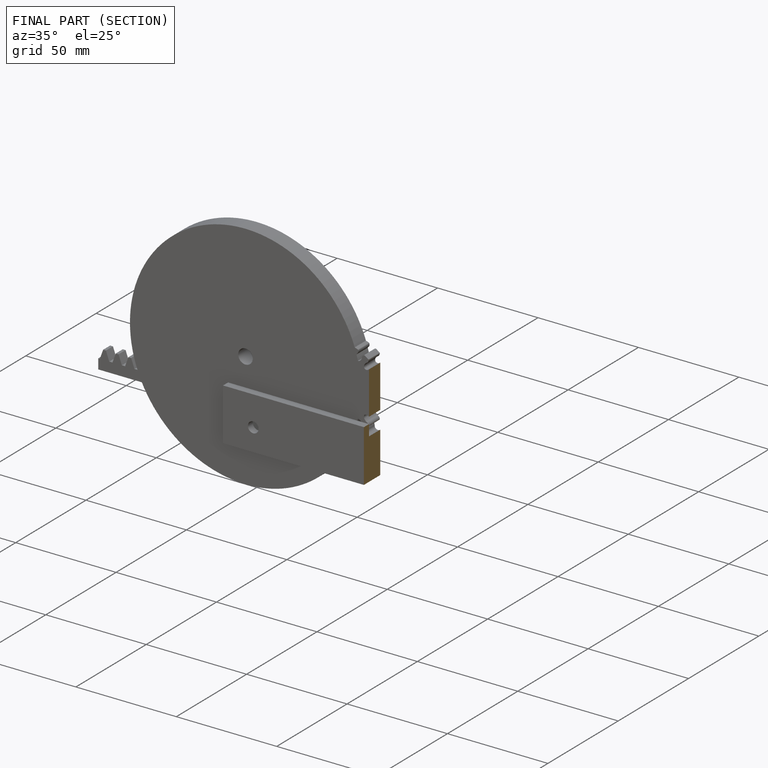
[diagram: finished part — half-section view (interior)]
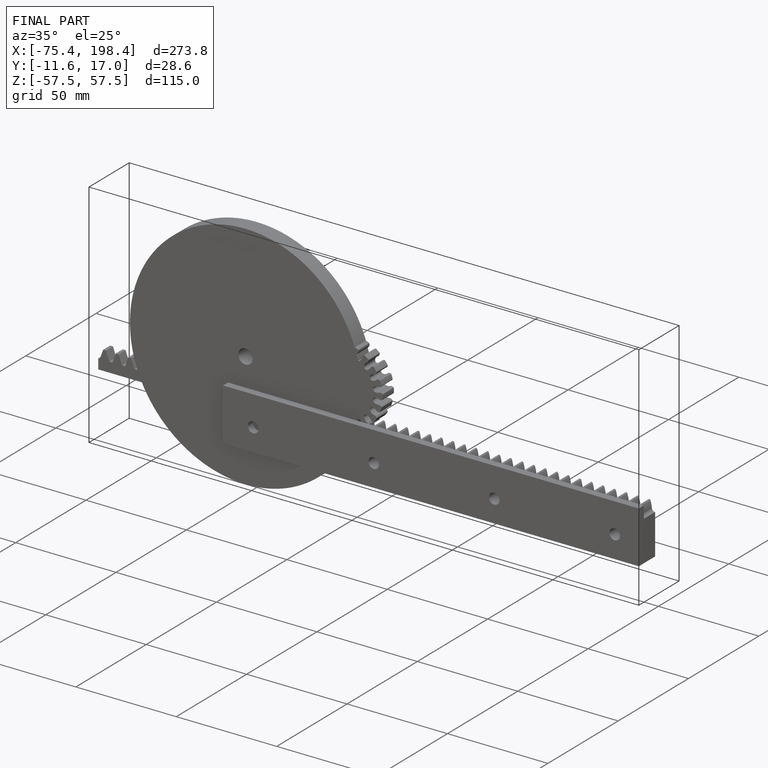
[diagram: finished part — iso view with bounding-box wireframe]
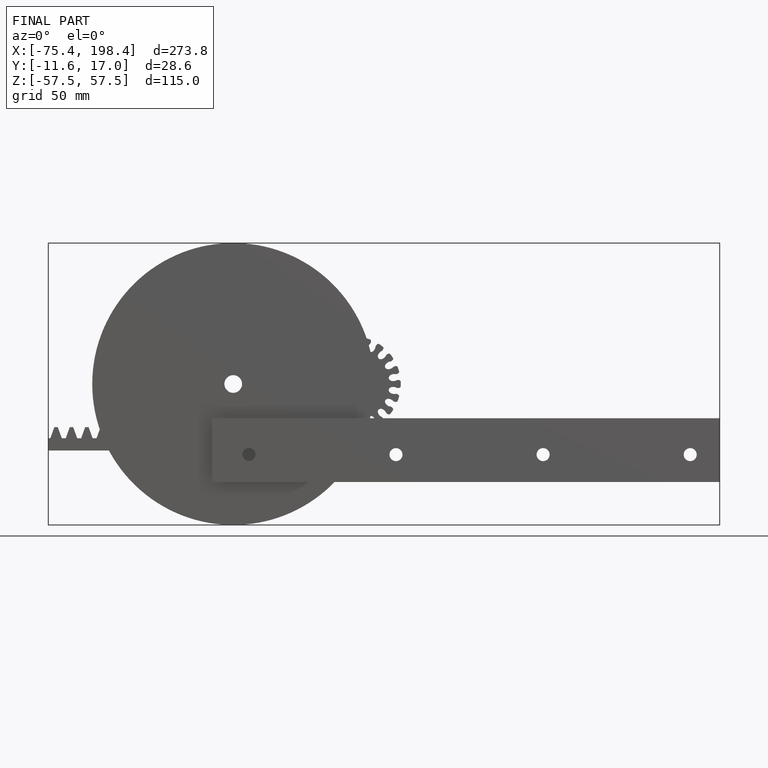
[diagram: finished part — front view with bounding-box wireframe]
